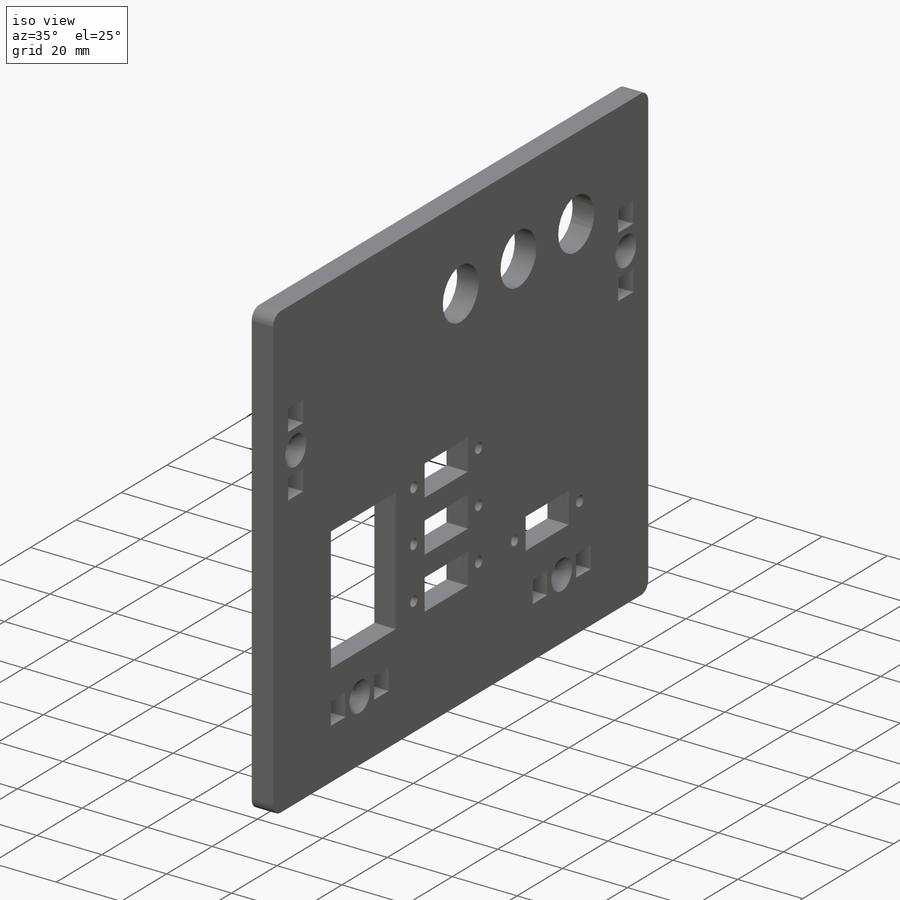
[diagram: iso view]
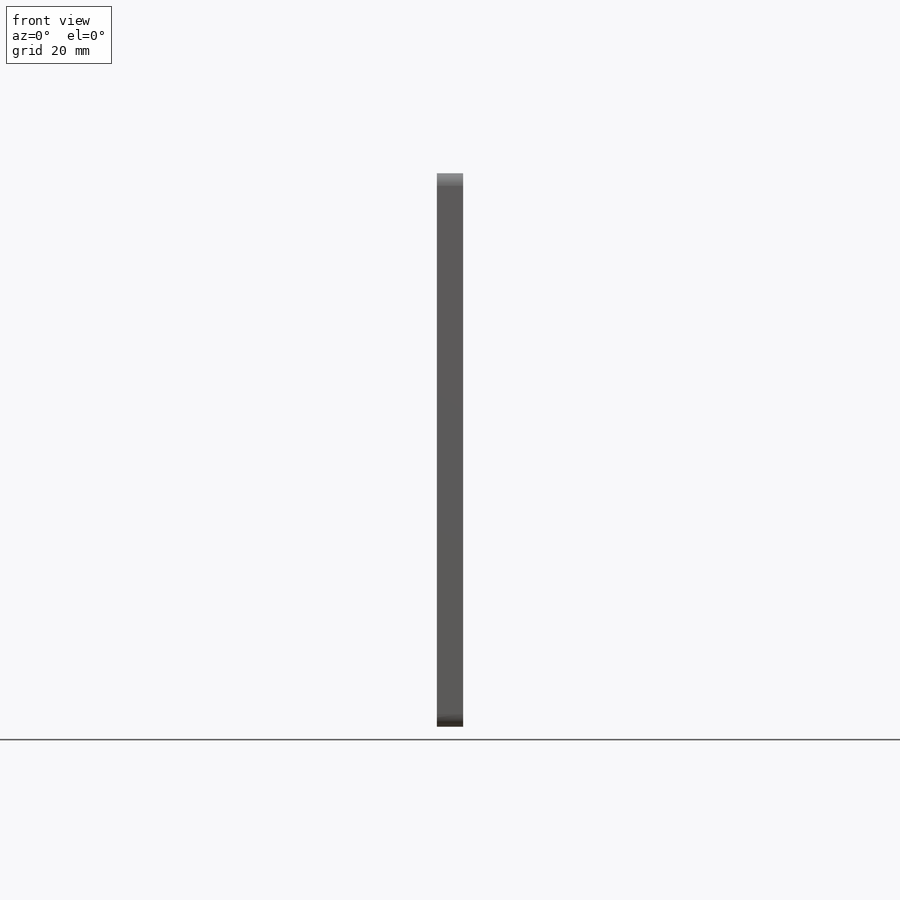
[diagram: front view]
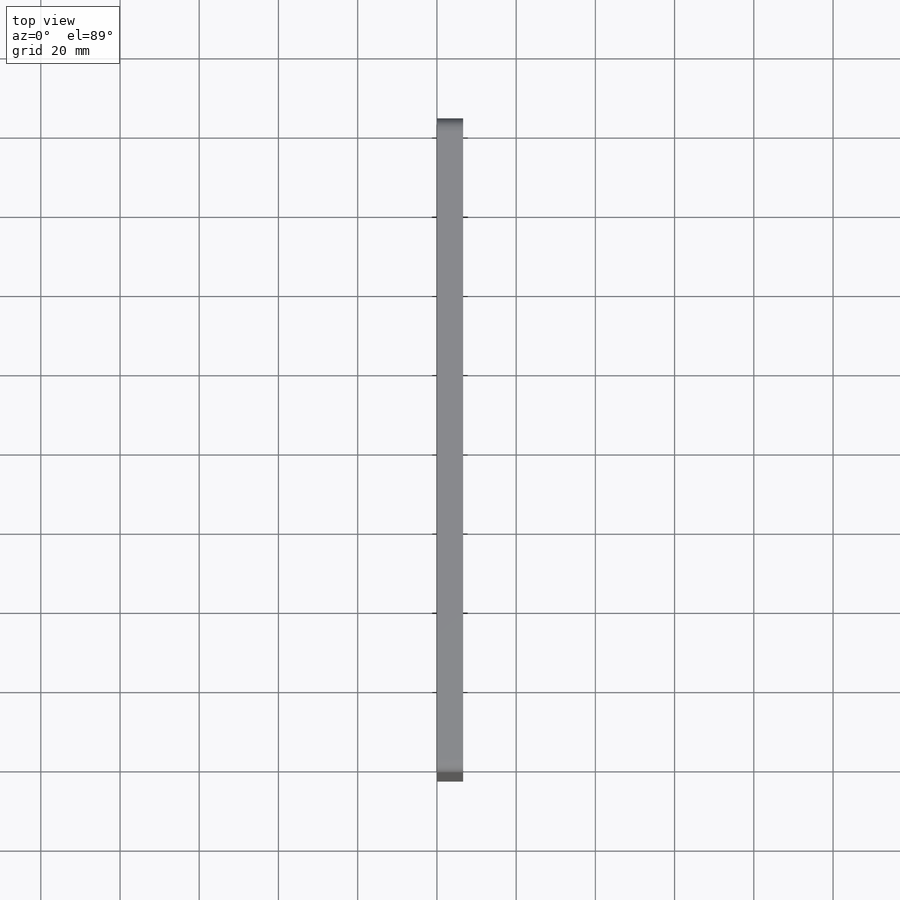
[diagram: top view]
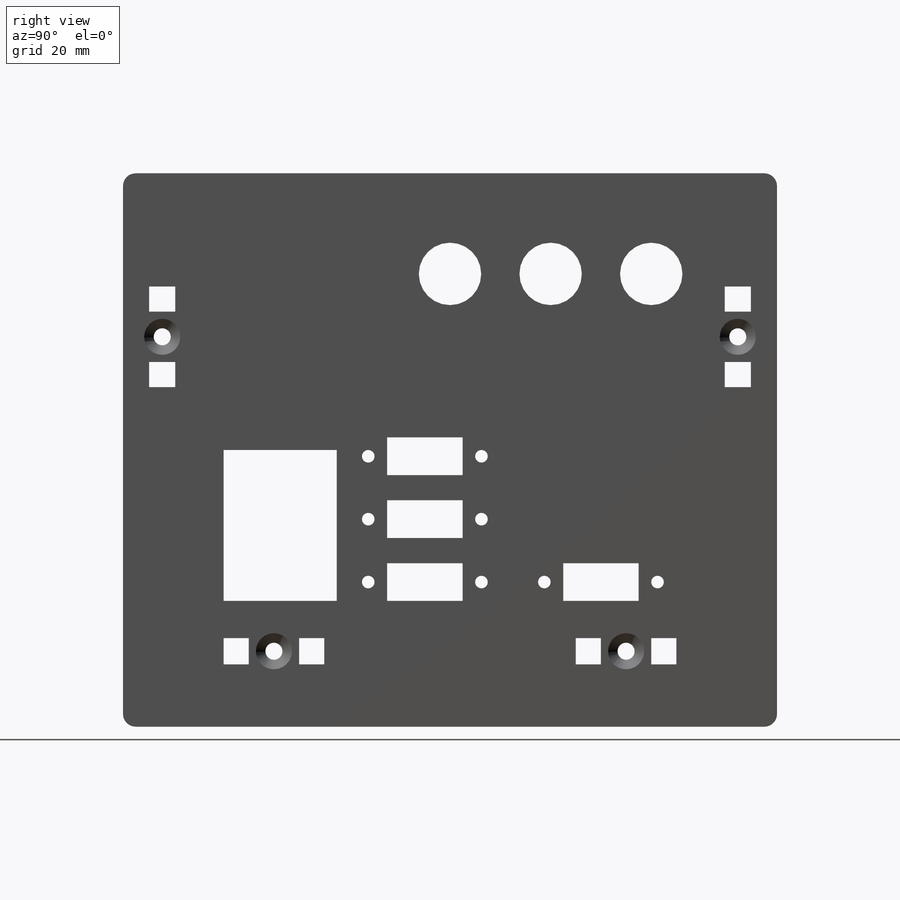
[diagram: right view]
SOLIDWORKS PART (.sldprt)
format: sldprt  version: not decoded by parser v0  size: 694,784 bytes
history: native  units: mm
features: sketch x7, extrude x4, cut_extrude x4, pattern_linear x2, material x1, fillet x1, hole x1 (+12 scaffold rows collapsed)
feature tree (32):
  scaffold x12  (default folders/planes/origin — collapsed)
  material  "Acrylic (Blue)"
  sketch  "Sketch1"  dims[D1=165.1mm D2=139.7mm D3=76.2mm D4=101.6mm]
  extrude  "Boss-Extrude1"  Depth=6.604mm
  sketch  "Sketch2"  dims[c1.D1=15.748mm c1.D4=~25.744323mm c1.D5=~25.744323mm c1.D6=16.0mm c1.D2=25.4mm c1.D3=25.4mm c2.D4=25.4mm c2.D5=114.3mm c2.D2=25.4mm c2.D3=31.75mm c3.D5=25.4mm c3.D7=6.35mm c3.D8=6.35mm c3.D9=6.35mm c3.D10=6.35mm c3.D4=25.4mm c4.D5=28.575mm c4.D6=38.1mm c4.D11=31.75mm c4.D12=25.4mm]
  cut_extrude  "Cut-Extrude1"  [1 undecoded]
  sketch  "Sketch3"  dims[D1=4.3053mm D2=6.35mm D3=6.604mm D4=12.7mm]
  extrude  "BOLT_HOLE-2"  Depth=50.8mm
  cut_extrude  "Cut-Extrude2"  [1 undecoded]
  sketch  "Sketch4"  dims[D4=3.175mm D1=28.575mm D2=19.05mm D3=9.525mm D5=35.56mm D6=76.2mm]
  cut_extrude  "Cut-Extrude3"  [1 undecoded]
  pattern_linear  "LPattern1"  Count1=3 Count2=1 Spacing1=15.875mm Spacing2=2.54mm
  fillet  "Fillet1"  Radius=3.175mm
  sketch  "Sketch5"
  extrude  "BOLT_HOLE-3"  [1 undecoded]
  extrude  "BOLT_HOLE-4"  Depth=28.575mm
  cut_extrude  "Cut-Extrude4"  [1 undecoded]
  hole  "CSK for #8 Flat Head Socket Cap Screw1"  Diameter=4.3053mm Depth=6.604mm
  sketch  "Sketch7"
  sketch  "Sketch6"  dims[hole-wizard template sketch: 59 standard entries collapsed; hole parameters above]
  pattern_linear  "LPattern2"  Count1=2 Count2=1 Spacing1=44.45mm Spacing2=2.54mm
decode coverage: 12 of 19 modeling features carry decoded parameters
note: ~ marks probable driven/reference dimensions
note: 5 parameter values undecoded
summary: no parameter record found for 5 features
note: suppression state not decoded; provenance and decode notes live in map.json
